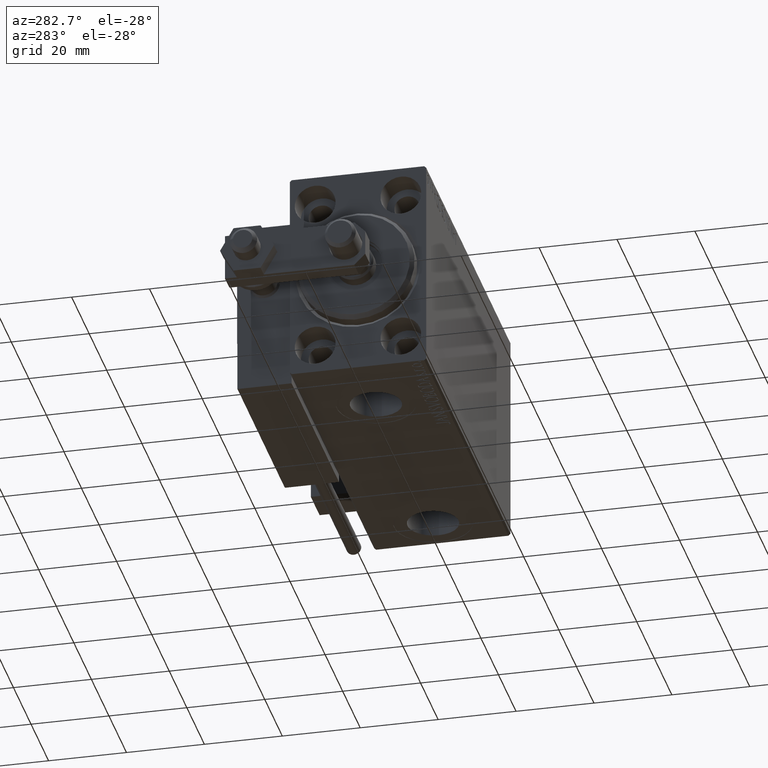
[diagram: clean part render]
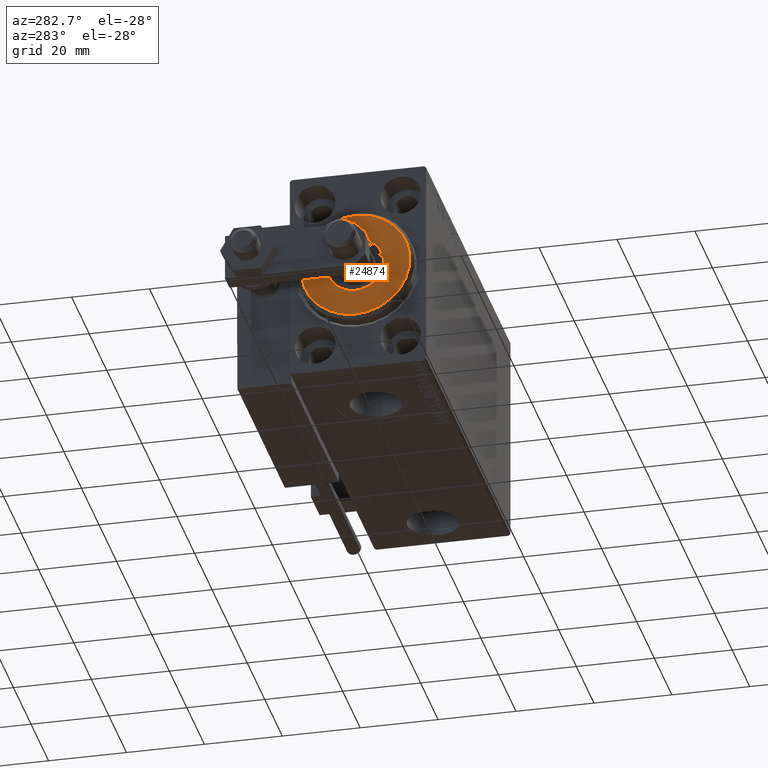
[diagram: same view with one face highlighted and labeled with its STEP entity id]
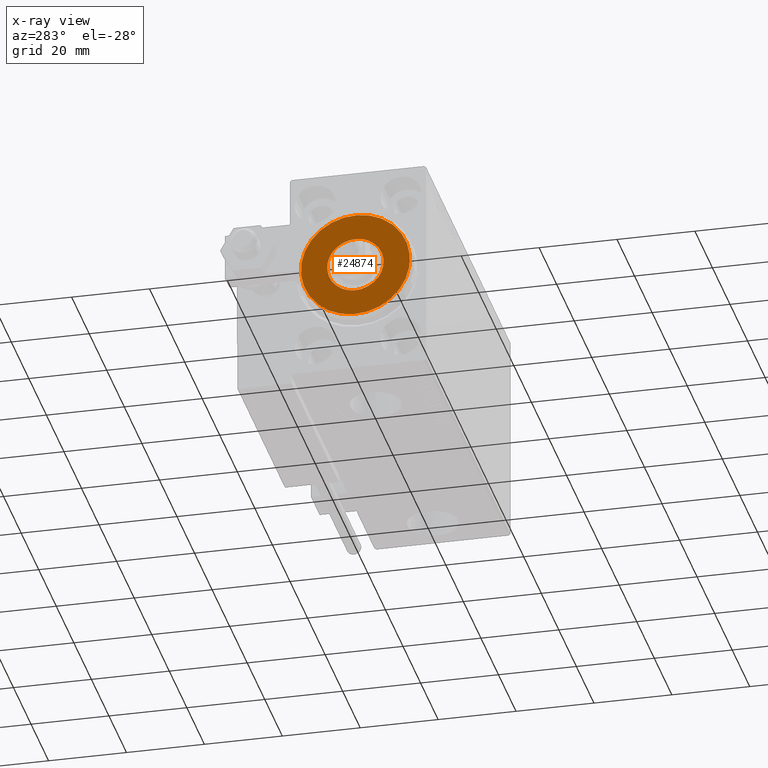
[diagram: x-ray of the same camera — body ghosted, the highlighted face saturated]
A machine part, auxiliary view. The second image highlights one B-rep face of the part: STEP entity #24874.
The next image is the same camera in x-ray: the body ghosted, the highlighted face saturated — about 0% of this face is hidden behind the body in this view.
In plain terms, the highlighted planar face has unit normal (-1, 0, 0).
Its self-contained STEP definition (entity closure, byte-faithful):
#540 = CARTESIAN_POINT ( 'NONE',  ( 3.000000000000000000, 0.000000000000000000, 13.99999999999999645 ) ) ;
#1371 = EDGE_CURVE ( 'NONE', #1764, #22729, #43463, .T. ) ;
#1684 = FACE_OUTER_BOUND ( 'NONE', #41708, .T. ) ;
#1764 = VERTEX_POINT ( 'NONE', #27429 ) ;
#2233 = DIRECTION ( 'NONE',  ( 1.000000000000000000, 0.000000000000000000, 0.000000000000000000 ) ) ;
#2987 = DIRECTION ( 'NONE',  ( 0.000000000000000000, 0.000000000000000000, -1.000000000000000000 ) ) ;
#3091 = AXIS2_PLACEMENT_3D ( 'NONE', #50764, #7580, #27882 ) ;
#7580 = DIRECTION ( 'NONE',  ( 1.000000000000000000, -0.000000000000000000, 0.000000000000000000 ) ) ;
#9003 = ORIENTED_EDGE ( 'NONE', *, *, #49629, .F. ) ;
#9757 = CARTESIAN_POINT ( 'NONE',  ( 3.000000000000000000, 0.000000000000000000, 0.000000000000000000 ) ) ;
#10182 = DIRECTION ( 'NONE',  ( 1.000000000000000000, -0.000000000000000000, 0.000000000000000000 ) ) ;
#10760 = ORIENTED_EDGE ( 'NONE', *, *, #1371, .F. ) ;
#10876 = CARTESIAN_POINT ( 'NONE',  ( 3.000000000000000000, 1.775737858763662015E-15, -13.99999999999999645 ) ) ;
#12566 = CIRCLE ( 'NONE', #22395, 13.99999999999999645 ) ;
#13312 = VERTEX_POINT ( 'NONE', #540 ) ;
#13538 = FACE_BOUND ( 'NONE', #30384, .T. ) ;
#14044 = DIRECTION ( 'NONE',  ( 0.000000000000000000, 0.000000000000000000, -1.000000000000000000 ) ) ;
#14337 = AXIS2_PLACEMENT_3D ( 'NONE', #42090, #2233, #2987 ) ;
#15775 = VERTEX_POINT ( 'NONE', #10876 ) ;
#16719 = DIRECTION ( 'NONE',  ( 1.000000000000000000, -0.000000000000000000, 0.000000000000000000 ) ) ;
#18736 = ORIENTED_EDGE ( 'NONE', *, *, #20578, .T. ) ;
#18866 = AXIS2_PLACEMENT_3D ( 'NONE', #37694, #10182, #14044 ) ;
#20578 = EDGE_CURVE ( 'NONE', #13312, #15775, #31044, .T. ) ;
#20894 = CARTESIAN_POINT ( 'NONE',  ( 3.000000000000000000, 0.000000000000000000, 0.000000000000000000 ) ) ;
#22395 = AXIS2_PLACEMENT_3D ( 'NONE', #9757, #16719, #25431 ) ;
#22729 = VERTEX_POINT ( 'NONE', #48709 ) ;
#24874 = ADVANCED_FACE ( 'NONE', ( #1684, #13538 ), #44896, .T. ) ;
#25431 = DIRECTION ( 'NONE',  ( 0.000000000000000000, 0.000000000000000000, -1.000000000000000000 ) ) ;
#27429 = CARTESIAN_POINT ( 'NONE',  ( 3.000000000000000000, 8.878689293818310074E-16, 7.249999999999999112 ) ) ;
#27882 = DIRECTION ( 'NONE',  ( 0.000000000000000000, 0.000000000000000000, -1.000000000000000000 ) ) ;
#30384 = EDGE_LOOP ( 'NONE', ( #9003, #10760 ) ) ;
#31044 = CIRCLE ( 'NONE', #3091, 13.99999999999999645 ) ;
#35019 = EDGE_CURVE ( 'NONE', #15775, #13312, #12566, .T. ) ;
#36088 = AXIS2_PLACEMENT_3D ( 'NONE', #20894, #44569, #36849 ) ;
#36849 = DIRECTION ( 'NONE',  ( 0.000000000000000000, 0.000000000000000000, -1.000000000000000000 ) ) ;
#37351 = CIRCLE ( 'NONE', #14337, 7.249999999999999112 ) ;
#37694 = CARTESIAN_POINT ( 'NONE',  ( 3.000000000000000000, 0.000000000000000000, 0.000000000000000000 ) ) ;
#41708 = EDGE_LOOP ( 'NONE', ( #18736, #45946 ) ) ;
#42090 = CARTESIAN_POINT ( 'NONE',  ( 3.000000000000000000, 0.000000000000000000, 0.000000000000000000 ) ) ;
#43463 = CIRCLE ( 'NONE', #36088, 7.249999999999999112 ) ;
#44569 = DIRECTION ( 'NONE',  ( 1.000000000000000000, 0.000000000000000000, 0.000000000000000000 ) ) ;
#44896 = PLANE ( 'NONE',  #18866 ) ;
#45946 = ORIENTED_EDGE ( 'NONE', *, *, #35019, .T. ) ;
#48709 = CARTESIAN_POINT ( 'NONE',  ( 3.000000000000000000, 0.000000000000000000, -7.249999999999999112 ) ) ;
#49629 = EDGE_CURVE ( 'NONE', #22729, #1764, #37351, .T. ) ;
#50764 = CARTESIAN_POINT ( 'NONE',  ( 3.000000000000000000, 0.000000000000000000, 0.000000000000000000 ) ) ;